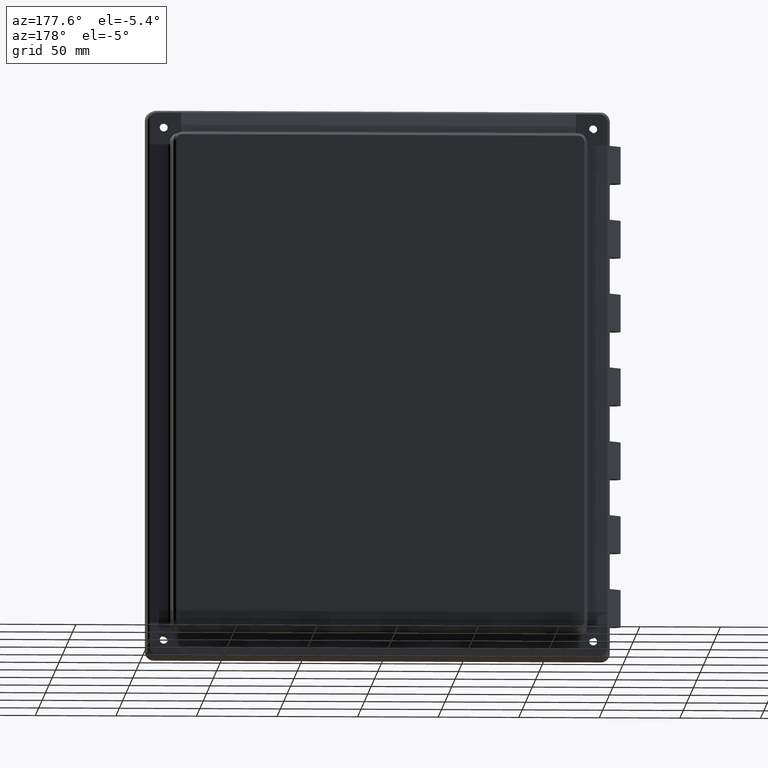
[diagram: clean part render]
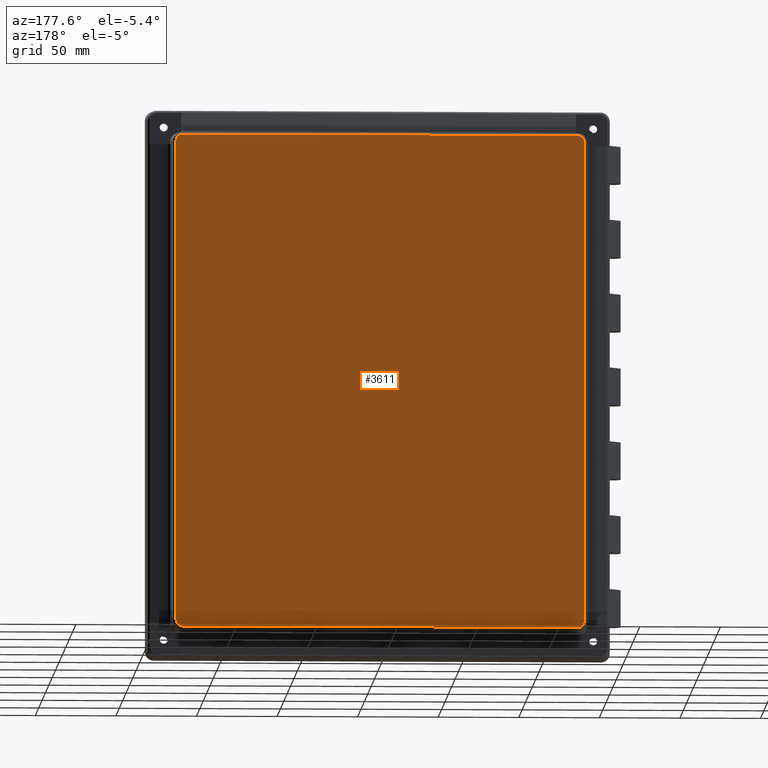
[diagram: same view with one face highlighted and labeled with its STEP entity id]
A machine part, auxiliary view. The second image highlights one B-rep face of the part: STEP entity #3611.
In plain terms, the highlighted planar face has unit normal (0, 1, 0).
Its self-contained STEP definition (entity closure, byte-faithful):
#3527 = EDGE_CURVE ( 'NONE', #3606, #3529, #8920, .T. ) ;
#3529 = VERTEX_POINT ( 'NONE', #8916 ) ;
#3530 = ORIENTED_EDGE ( 'NONE', *, *, #3527, .T. ) ;
#3576 = EDGE_CURVE ( 'NONE', #3580, #3609, #9030, .T. ) ;
#3578 = ORIENTED_EDGE ( 'NONE', *, *, #3576, .T. ) ;
#3579 = EDGE_CURVE ( 'NONE', #3589, #3580, #9031, .T. ) ;
#3580 = VERTEX_POINT ( 'NONE', #9013 ) ;
#3581 = VERTEX_POINT ( 'NONE', #9012 ) ;
#3587 = ORIENTED_EDGE ( 'NONE', *, *, #3597, .T. ) ;
#3588 = ORIENTED_EDGE ( 'NONE', *, *, #3599, .T. ) ;
#3589 = VERTEX_POINT ( 'NONE', #9060 ) ;
#3590 = ORIENTED_EDGE ( 'NONE', *, *, #3591, .T. ) ;
#3591 = EDGE_CURVE ( 'NONE', #3598, #3581, #9059, .T. ) ;
#3597 = EDGE_CURVE ( 'NONE', #3529, #3598, #9046, .T. ) ;
#3598 = VERTEX_POINT ( 'NONE', #9045 ) ;
#3599 = EDGE_CURVE ( 'NONE', #3581, #3589, #9089, .T. ) ;
#3600 = ORIENTED_EDGE ( 'NONE', *, *, #3579, .T. ) ;
#3604 = ORIENTED_EDGE ( 'NONE', *, *, #3605, .T. ) ;
#3605 = EDGE_CURVE ( 'NONE', #3608, #3606, #9068, .T. ) ;
#3606 = VERTEX_POINT ( 'NONE', #9067 ) ;
#3607 = EDGE_CURVE ( 'NONE', #3609, #3608, #9137, .T. ) ;
#3608 = VERTEX_POINT ( 'NONE', #9125 ) ;
#3609 = VERTEX_POINT ( 'NONE', #9124 ) ;
#3610 = ORIENTED_EDGE ( 'NONE', *, *, #3607, .T. ) ;
#3611 = ADVANCED_FACE ( 'NONE', ( #9123 ), #9122, .T. ) ;
#3612 = EDGE_LOOP ( 'NONE', ( #3610, #3604, #3530, #3587, #3590, #3588, #3600, #3578 ) ) ;
#8916 = CARTESIAN_POINT ( 'NONE',  ( -126.6330037502764200, 34.00000000000000000, 149.3041769975908700 ) ) ;
#8917 = DIRECTION ( 'NONE',  ( 8.867596043331924300E-017, 0.0000000000000000000, 1.000000000000000000 ) ) ;
#8918 = VECTOR ( 'NONE', #8917, 1000.000000000000000 ) ;
#8919 = CARTESIAN_POINT ( 'NONE',  ( -126.6330037502764200, 34.00000000000000000, 149.2256730632263400 ) ) ;
#8920 = LINE ( 'NONE', #8919, #8918 ) ;
#9012 = CARTESIAN_POINT ( 'NONE',  ( 122.8041769975909700, 34.00000000000000000, 153.1330037502763700 ) ) ;
#9013 = CARTESIAN_POINT ( 'NONE',  ( 126.6330037502764200, 34.00000000000000000, -149.3041769975908200 ) ) ;
#9014 = CARTESIAN_POINT ( 'NONE',  ( 122.8041769975908600, 34.00000000000000000, -153.1330037502763400 ) ) ;
#9015 = CARTESIAN_POINT ( 'NONE',  ( 123.3057933892134500, 34.00000000000000000, -153.1349423862213000 ) ) ;
#9016 = CARTESIAN_POINT ( 'NONE',  ( 123.7940391989706800, 33.99999999999999300, -153.0373377878087500 ) ) ;
#9017 = CARTESIAN_POINT ( 'NONE',  ( 124.7437896547544100, 33.99999999999999300, -152.6430421222686700 ) ) ;
#9018 = CARTESIAN_POINT ( 'NONE',  ( 125.1569440721260200, 34.00000000000000700, -152.3675752403446200 ) ) ;
#9019 = CARTESIAN_POINT ( 'NONE',  ( 125.8674593839879900, 34.00000000000000000, -151.6568282157694200 ) ) ;
#9020 = CARTESIAN_POINT ( 'NONE',  ( 126.1440281517898000, 34.00000000000000000, -151.2418262364641900 ) ) ;
#9021 = CARTESIAN_POINT ( 'NONE',  ( 126.4382708566633400, 34.00000000000000700, -150.5324585220617500 ) ) ;
#9022 = CARTESIAN_POINT ( 'NONE',  ( 126.5124507910862000, 34.00000000000000700, -150.2903891230243400 ) ) ;
#9023 = CARTESIAN_POINT ( 'NONE',  ( 126.6100553894987100, 34.00000000000000000, -149.8021433132670900 ) ) ;
#9024 = CARTESIAN_POINT ( 'NONE',  ( 126.6339722761600800, 34.00000000000001400, -149.5547802397487700 ) ) ;
#9025 = CARTESIAN_POINT ( 'NONE',  ( 126.6330037502764200, 34.00000000000000000, -149.3041769975908200 ) ) ;
#9026 = DIRECTION ( 'NONE',  ( -2.660278812999576700E-016, 0.0000000000000000000, -1.000000000000000000 ) ) ;
#9027 = VECTOR ( 'NONE', #9026, 1000.000000000000000 ) ;
#9028 = CARTESIAN_POINT ( 'NONE',  ( 126.6330037502764200, 34.00000000000000000, -149.2256730632264200 ) ) ;
#9030 = B_SPLINE_CURVE_WITH_KNOTS ( 'NONE', 3,
 ( #9025, #9024, #9023, #9022, #9021, #9020, #9019, #9018, #9017, #9016, #9015, #9014 ),
 .UNSPECIFIED., .F., .F.,
 ( 4, 2, 2, 2, 2, 4 ),
 ( 0.0000000000000000000, 0.1250000000000066300, 0.2500000000000132700, 0.5000000000000088800, 0.7500000000000044400, 1.000000000000000000 ),
 .UNSPECIFIED. ) ;
#9031 = LINE ( 'NONE', #9028, #9027 ) ;
#9042 = CARTESIAN_POINT ( 'NONE',  ( -126.6330037502764200, 34.00000000000000000, 149.3041769975908700 ) ) ;
#9045 = CARTESIAN_POINT ( 'NONE',  ( -122.8041769975908700, 34.00000000000000000, 153.1330037502763700 ) ) ;
#9046 = B_SPLINE_CURVE_WITH_KNOTS ( 'NONE', 3,
 ( #9042, #9100, #9099, #9098, #9097, #9096, #9095, #9094, #9093, #9092, #9091, #9090 ),
 .UNSPECIFIED., .F., .F.,
 ( 4, 2, 2, 2, 2, 4 ),
 ( 0.0000000000000000000, 0.1249999999999972500, 0.2499999999999945000, 0.4999999999999963400, 0.7499999999999981100, 1.000000000000000000 ),
 .UNSPECIFIED. ) ;
#9056 = DIRECTION ( 'NONE',  ( 1.000000000000000000, 0.0000000000000000000, 0.0000000000000000000 ) ) ;
#9057 = VECTOR ( 'NONE', #9056, 1000.000000000000000 ) ;
#9058 = CARTESIAN_POINT ( 'NONE',  ( 122.7256730632264400, 34.00000000000000000, 153.1330037502763700 ) ) ;
#9059 = LINE ( 'NONE', #9058, #9057 ) ;
#9060 = CARTESIAN_POINT ( 'NONE',  ( 126.6330037502765000, 34.00000000000000000, 149.3041769975908700 ) ) ;
#9067 = CARTESIAN_POINT ( 'NONE',  ( -126.6330037502764400, 34.00000000000000000, -149.3041769975908700 ) ) ;
#9068 = B_SPLINE_CURVE_WITH_KNOTS ( 'NONE', 3,
 ( #9072, #9071, #9070, #9069, #9134, #9133, #9132, #9131, #9130, #9129, #9128, #9127 ),
 .UNSPECIFIED., .F., .F.,
 ( 4, 2, 2, 2, 2, 4 ),
 ( 0.0000000000000000000, 0.1250000000000043000, 0.2500000000000086000, 0.5000000000000057700, 0.7500000000000028900, 1.000000000000000000 ),
 .UNSPECIFIED. ) ;
#9069 = CARTESIAN_POINT ( 'NONE',  ( -123.7903891230994600, 34.00000000000000700, -153.0124507910692000 ) ) ;
#9070 = CARTESIAN_POINT ( 'NONE',  ( -123.3021433133422300, 34.00000000000000000, -153.1100553894817200 ) ) ;
#9071 = CARTESIAN_POINT ( 'NONE',  ( -123.0547802397988700, 34.00000000000000700, -153.1339722761486800 ) ) ;
#9072 = CARTESIAN_POINT ( 'NONE',  ( -122.8041769975908900, 34.00000000000000000, -153.1330037502763400 ) ) ;
#9075 = CARTESIAN_POINT ( 'NONE',  ( 126.6330037502765000, 34.00000000000000000, 149.3041769975908700 ) ) ;
#9076 = CARTESIAN_POINT ( 'NONE',  ( 126.6349423862443500, 34.00000000000000000, 149.8057933891583400 ) ) ;
#9077 = CARTESIAN_POINT ( 'NONE',  ( 126.5373377878318000, 34.00000000000000700, 150.2940391989156100 ) ) ;
#9078 = CARTESIAN_POINT ( 'NONE',  ( 126.1430421222460000, 34.00000000000000000, 151.2437896548095200 ) ) ;
#9079 = CARTESIAN_POINT ( 'NONE',  ( 125.8675752403282600, 34.00000000000000700, 151.6569440721655700 ) ) ;
#9080 = CARTESIAN_POINT ( 'NONE',  ( 125.1568282157858900, 34.00000000000000000, 152.3674593839484400 ) ) ;
#9081 = CARTESIAN_POINT ( 'NONE',  ( 124.7418262364651200, 34.00000000000000000, 152.6440281517657500 ) ) ;
#9082 = CARTESIAN_POINT ( 'NONE',  ( 124.0324585220613800, 34.00000000000000000, 152.9382708566752200 ) ) ;
#9083 = CARTESIAN_POINT ( 'NONE',  ( 123.7903891231081700, 34.00000000000000700, 153.0124507910692600 ) ) ;
#9084 = CARTESIAN_POINT ( 'NONE',  ( 123.3021433133510100, 33.99999999999999300, 153.1100553894817700 ) ) ;
#9085 = CARTESIAN_POINT ( 'NONE',  ( 123.0547802398047700, 34.00000000000000000, 153.1339722761487100 ) ) ;
#9086 = CARTESIAN_POINT ( 'NONE',  ( 122.8041769975909700, 34.00000000000000000, 153.1330037502763700 ) ) ;
#9089 = B_SPLINE_CURVE_WITH_KNOTS ( 'NONE', 3,
 ( #9086, #9085, #9084, #9083, #9082, #9081, #9080, #9079, #9078, #9077, #9076, #9075 ),
 .UNSPECIFIED., .F., .F.,
 ( 4, 2, 2, 2, 2, 4 ),
 ( 0.0000000000000000000, 0.1250000000000023300, 0.2500000000000046600, 0.5000000000000031100, 0.7500000000000015500, 1.000000000000000000 ),
 .UNSPECIFIED. ) ;
#9090 = CARTESIAN_POINT ( 'NONE',  ( -122.8041769975908700, 34.00000000000000000, 153.1330037502763700 ) ) ;
#9091 = CARTESIAN_POINT ( 'NONE',  ( -123.3057933891850700, 33.99999999999999300, 153.1349423862211600 ) ) ;
#9092 = CARTESIAN_POINT ( 'NONE',  ( -123.7940391989422900, 33.99999999999999300, 153.0373377878086100 ) ) ;
#9093 = CARTESIAN_POINT ( 'NONE',  ( -124.7437896547827600, 33.99999999999999300, 152.6430421222688100 ) ) ;
#9094 = CARTESIAN_POINT ( 'NONE',  ( -125.1569440721058700, 34.00000000000000000, 152.3675752403647400 ) ) ;
#9095 = CARTESIAN_POINT ( 'NONE',  ( -125.8674593840081700, 34.00000000000000000, 151.6568282157492700 ) ) ;
#9096 = CARTESIAN_POINT ( 'NONE',  ( -126.1440281517779500, 33.99999999999999300, 151.2418262364760400 ) ) ;
#9097 = CARTESIAN_POINT ( 'NONE',  ( -126.4382708566692100, 34.00000000000000700, 150.5324585220558300 ) ) ;
#9098 = CARTESIAN_POINT ( 'NONE',  ( -126.5124507910777000, 34.00000000000000000, 150.2903891230573700 ) ) ;
#9099 = CARTESIAN_POINT ( 'NONE',  ( -126.6100553894902700, 34.00000000000000000, 149.8021433133001500 ) ) ;
#9100 = CARTESIAN_POINT ( 'NONE',  ( -126.6339722761544000, 34.00000000000000000, 149.5547802397709100 ) ) ;
#9118 = DIRECTION ( 'NONE',  ( 0.0000000000000000000, 0.0000000000000000000, 1.000000000000000000 ) ) ;
#9119 = DIRECTION ( 'NONE',  ( 0.0000000000000000000, 1.000000000000000000, 0.0000000000000000000 ) ) ;
#9120 = CARTESIAN_POINT ( 'NONE',  ( -130.0000000000000300, 34.00000000000000000, 156.5000000000000000 ) ) ;
#9121 = AXIS2_PLACEMENT_3D ( 'NONE', #9120, #9119, #9118 ) ;
#9122 = PLANE ( 'NONE',  #9121 ) ;
#9123 = FACE_OUTER_BOUND ( 'NONE', #3612, .T. ) ;
#9124 = CARTESIAN_POINT ( 'NONE',  ( 122.8041769975908600, 34.00000000000000000, -153.1330037502763400 ) ) ;
#9125 = CARTESIAN_POINT ( 'NONE',  ( -122.8041769975908900, 34.00000000000000000, -153.1330037502763400 ) ) ;
#9126 = DIRECTION ( 'NONE',  ( -1.000000000000000000, 0.0000000000000000000, 0.0000000000000000000 ) ) ;
#9127 = CARTESIAN_POINT ( 'NONE',  ( -126.6330037502764400, 34.00000000000000000, -149.3041769975908700 ) ) ;
#9128 = CARTESIAN_POINT ( 'NONE',  ( -126.6349423862327400, 34.00000000000000000, -149.8057933891575700 ) ) ;
#9129 = CARTESIAN_POINT ( 'NONE',  ( -126.5373377878201900, 34.00000000000000700, -150.2940391989148200 ) ) ;
#9130 = CARTESIAN_POINT ( 'NONE',  ( -126.1430421222575000, 34.00000000000000000, -151.2437896548103400 ) ) ;
#9131 = CARTESIAN_POINT ( 'NONE',  ( -125.8675752403483900, 34.00000000000001400, -151.6569440721453900 ) ) ;
#9132 = CARTESIAN_POINT ( 'NONE',  ( -125.1568282157657100, 33.99999999999999300, -152.3674593839685400 ) ) ;
#9133 = CARTESIAN_POINT ( 'NONE',  ( -124.7418262364566000, 34.00000000000000700, -152.6440281517741900 ) ) ;
#9134 = CARTESIAN_POINT ( 'NONE',  ( -124.0324585220655700, 34.00000000000000000, -152.9382708566710400 ) ) ;
#9135 = VECTOR ( 'NONE', #9126, 1000.000000000000000 ) ;
#9136 = CARTESIAN_POINT ( 'NONE',  ( -122.7256730632264800, 34.00000000000000000, -153.1330037502763400 ) ) ;
#9137 = LINE ( 'NONE', #9136, #9135 ) ;